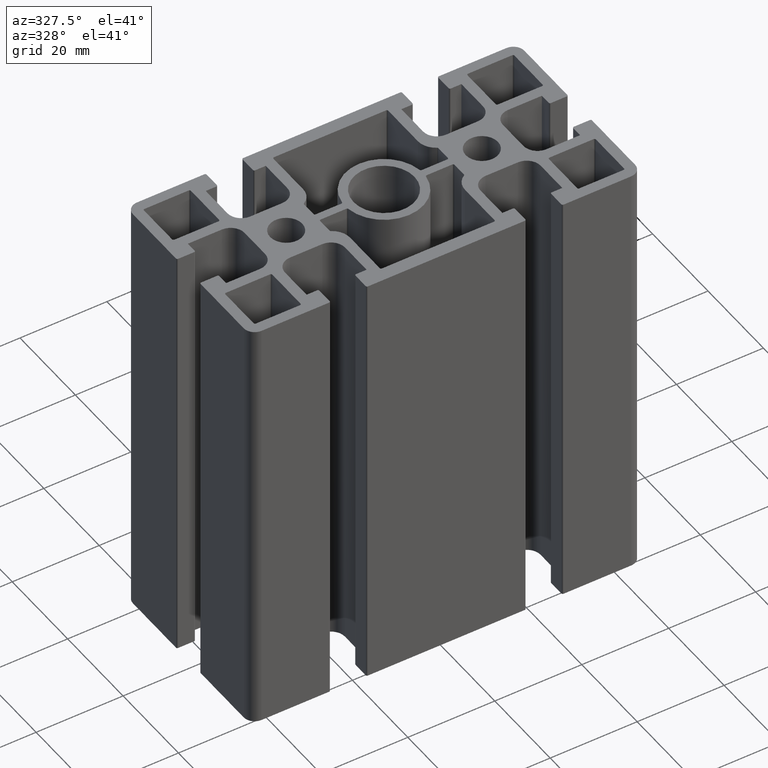
[diagram: clean part render]
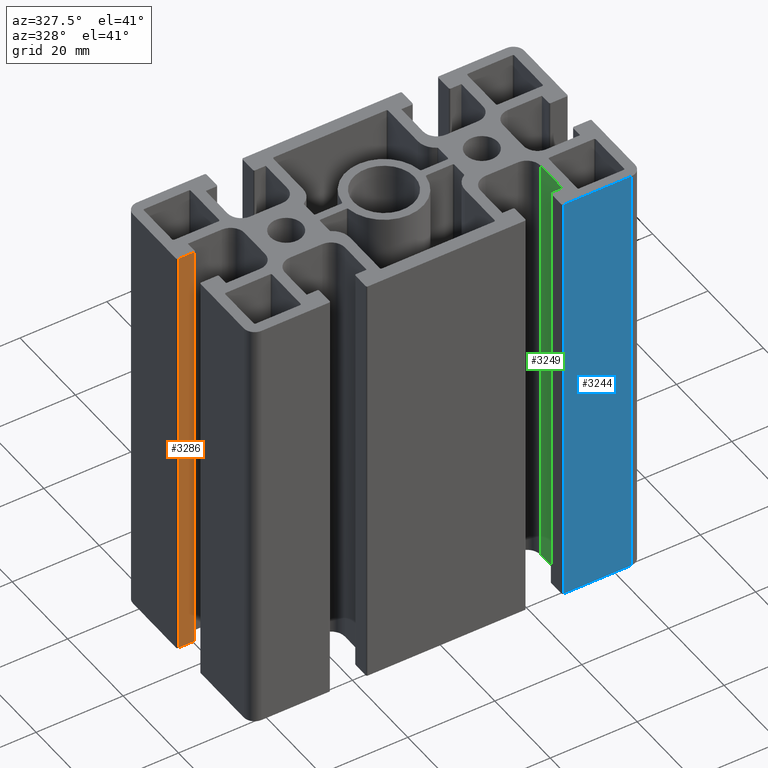
[diagram: same view with three faces highlighted in distinct colors, each labeled with its STEP entity id]
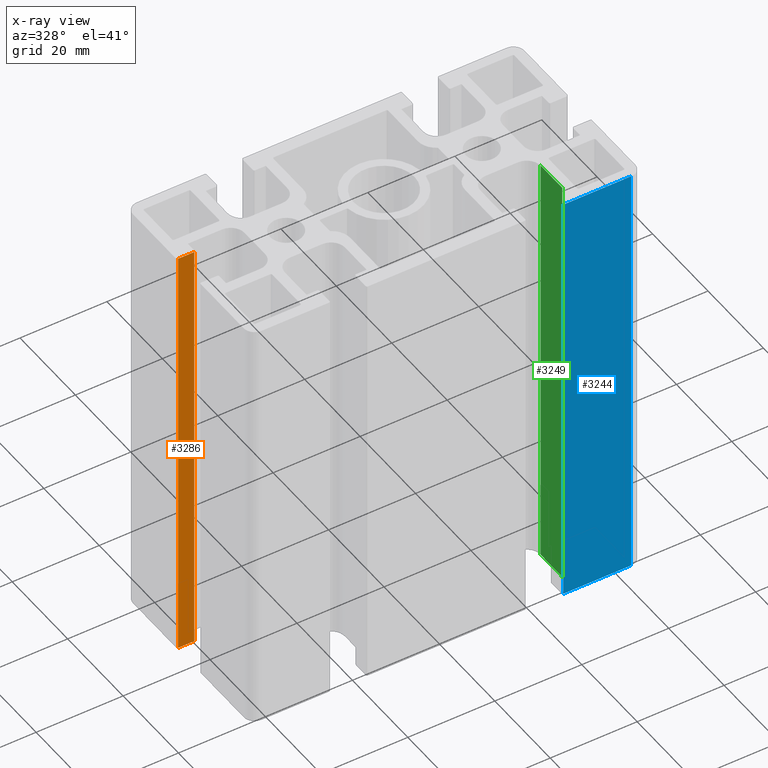
[diagram: x-ray of the same camera — body ghosted, the three highlighted faces saturated]
A machine part, auxiliary view with three faces highlighted in distinct colors.
The next image is the same camera in x-ray (body ghosted, the three faces saturated) — at least one of them is partly hidden behind the body in this view.
Their STEP definitions:

[orange] entity #3286 — the highlighted planar face has unit normal (0, -1, 0).
#105=PLANE('',#3595);
#260=FACE_OUTER_BOUND('',#428,.T.);
#428=EDGE_LOOP('',(#2647,#2648,#2649,#2650));
#746=LINE('',#5460,#1070);
#747=LINE('',#5463,#1071);
#748=LINE('',#5465,#1072);
#749=LINE('',#5466,#1073);
#1070=VECTOR('',#4481,100.);
#1071=VECTOR('',#4484,3.7);
#1072=VECTOR('',#4485,3.7);
#1073=VECTOR('',#4486,100.);
#1561=VERTEX_POINT('',#5456);
#1562=VERTEX_POINT('',#5458);
#1563=VERTEX_POINT('',#5462);
#1564=VERTEX_POINT('',#5464);
#2024=EDGE_CURVE('',#1561,#1562,#746,.T.);
#2025=EDGE_CURVE('',#1563,#1561,#747,.T.);
#2026=EDGE_CURVE('',#1564,#1562,#748,.T.);
#2027=EDGE_CURVE('',#1563,#1564,#749,.T.);
#2647=ORIENTED_EDGE('',*,*,#2025,.T.);
#2648=ORIENTED_EDGE('',*,*,#2024,.T.);
#2649=ORIENTED_EDGE('',*,*,#2026,.F.);
#2650=ORIENTED_EDGE('',*,*,#2027,.F.);
#3286=ADVANCED_FACE('',(#260),#105,.T.);
#3595=AXIS2_PLACEMENT_3D('',#5461,#4482,#4483);
#4481=DIRECTION('',(0.,0.,1.));
#4482=DIRECTION('center_axis',(1.50030138462859E-16,-1.,0.));
#4483=DIRECTION('ref_axis',(1.,1.77635683940025E-16,0.));
#4484=DIRECTION('',(1.,1.50030138462859E-16,0.));
#4485=DIRECTION('',(1.,1.50030138462859E-16,0.));
#4486=DIRECTION('',(0.,0.,1.));
#5456=CARTESIAN_POINT('',(-41.,4.15,0.));
#5458=CARTESIAN_POINT('',(-41.,4.15,100.));
#5460=CARTESIAN_POINT('',(-41.,4.15,0.));
#5461=CARTESIAN_POINT('Origin',(-44.7,4.15,0.));
#5462=CARTESIAN_POINT('',(-44.7,4.15,0.));
#5463=CARTESIAN_POINT('',(-44.7,4.15,0.));
#5464=CARTESIAN_POINT('',(-44.7,4.15,100.));
#5465=CARTESIAN_POINT('',(-44.7,4.15,100.));
#5466=CARTESIAN_POINT('',(-44.7,4.15,0.));

[blue] entity #3244 — the highlighted planar face has unit normal (0, -1, 0).
#81=PLANE('',#3517);
#218=FACE_OUTER_BOUND('',#386,.T.);
#386=EDGE_LOOP('',(#2479,#2480,#2481,#2482));
#656=LINE('',#5208,#980);
#657=LINE('',#5211,#981);
#658=LINE('',#5213,#982);
#659=LINE('',#5214,#983);
#980=VECTOR('',#4235,100.);
#981=VECTOR('',#4238,15.55);
#982=VECTOR('',#4239,15.55);
#983=VECTOR('',#4240,100.);
#1477=VERTEX_POINT('',#5204);
#1478=VERTEX_POINT('',#5206);
#1479=VERTEX_POINT('',#5210);
#1480=VERTEX_POINT('',#5212);
#1898=EDGE_CURVE('',#1477,#1478,#656,.T.);
#1899=EDGE_CURVE('',#1479,#1477,#657,.T.);
#1900=EDGE_CURVE('',#1480,#1478,#658,.T.);
#1901=EDGE_CURVE('',#1479,#1480,#659,.T.);
#2479=ORIENTED_EDGE('',*,*,#1899,.T.);
#2480=ORIENTED_EDGE('',*,*,#1898,.T.);
#2481=ORIENTED_EDGE('',*,*,#1900,.F.);
#2482=ORIENTED_EDGE('',*,*,#1901,.F.);
#3244=ADVANCED_FACE('',(#218),#81,.T.);
#3517=AXIS2_PLACEMENT_3D('',#5209,#4236,#4237);
#4235=DIRECTION('',(0.,0.,1.));
#4236=DIRECTION('center_axis',(0.,-1.,0.));
#4237=DIRECTION('ref_axis',(1.,0.,0.));
#4238=DIRECTION('',(1.,0.,0.));
#4239=DIRECTION('',(1.,0.,0.));
#4240=DIRECTION('',(0.,0.,1.));
#5204=CARTESIAN_POINT('',(42.5,-22.5,0.));
#5206=CARTESIAN_POINT('',(42.5,-22.5,100.));
#5208=CARTESIAN_POINT('',(42.5,-22.5,0.));
#5209=CARTESIAN_POINT('Origin',(26.95,-22.5,0.));
#5210=CARTESIAN_POINT('',(26.95,-22.5,0.));
#5211=CARTESIAN_POINT('',(26.95,-22.5,0.));
#5212=CARTESIAN_POINT('',(26.95,-22.5,100.));
#5213=CARTESIAN_POINT('',(26.95,-22.5,100.));
#5214=CARTESIAN_POINT('',(26.95,-22.5,0.));

[green] entity #3249 — the highlighted planar face has unit normal (-1, -0, 0).
#84=PLANE('',#3526);
#223=FACE_OUTER_BOUND('',#391,.T.);
#391=EDGE_LOOP('',(#2499,#2500,#2501,#2502));
#667=LINE('',#5238,#991);
#668=LINE('',#5241,#992);
#669=LINE('',#5243,#993);
#670=LINE('',#5244,#994);
#991=VECTOR('',#4264,100.);
#992=VECTOR('',#4267,7.8);
#993=VECTOR('',#4268,7.8);
#994=VECTOR('',#4269,100.);
#1487=VERTEX_POINT('',#5234);
#1488=VERTEX_POINT('',#5236);
#1489=VERTEX_POINT('',#5240);
#1490=VERTEX_POINT('',#5242);
#1913=EDGE_CURVE('',#1487,#1488,#667,.T.);
#1914=EDGE_CURVE('',#1489,#1487,#668,.T.);
#1915=EDGE_CURVE('',#1490,#1488,#669,.T.);
#1916=EDGE_CURVE('',#1489,#1490,#670,.T.);
#2499=ORIENTED_EDGE('',*,*,#1914,.T.);
#2500=ORIENTED_EDGE('',*,*,#1913,.T.);
#2501=ORIENTED_EDGE('',*,*,#1915,.F.);
#2502=ORIENTED_EDGE('',*,*,#1916,.F.);
#3249=ADVANCED_FACE('',(#223),#84,.T.);
#3526=AXIS2_PLACEMENT_3D('',#5239,#4265,#4266);
#4264=DIRECTION('',(0.,0.,1.));
#4265=DIRECTION('center_axis',(-1.,-5.69345140833414E-16,0.));
#4266=DIRECTION('ref_axis',(7.105427357601E-16,-1.,0.));
#4267=DIRECTION('',(5.69345140833414E-16,-1.,0.));
#4268=DIRECTION('',(5.69345140833414E-16,-1.,0.));
#4269=DIRECTION('',(0.,0.,1.));
#5234=CARTESIAN_POINT('',(29.4,-18.2,0.));
#5236=CARTESIAN_POINT('',(29.4,-18.2,100.));
#5238=CARTESIAN_POINT('',(29.4,-18.2,0.));
#5239=CARTESIAN_POINT('Origin',(29.4,-10.4,0.));
#5240=CARTESIAN_POINT('',(29.4,-10.4,0.));
#5241=CARTESIAN_POINT('',(29.4,-10.4,0.));
#5242=CARTESIAN_POINT('',(29.4,-10.4,100.));
#5243=CARTESIAN_POINT('',(29.4,-10.4,100.));
#5244=CARTESIAN_POINT('',(29.4,-10.4,0.));